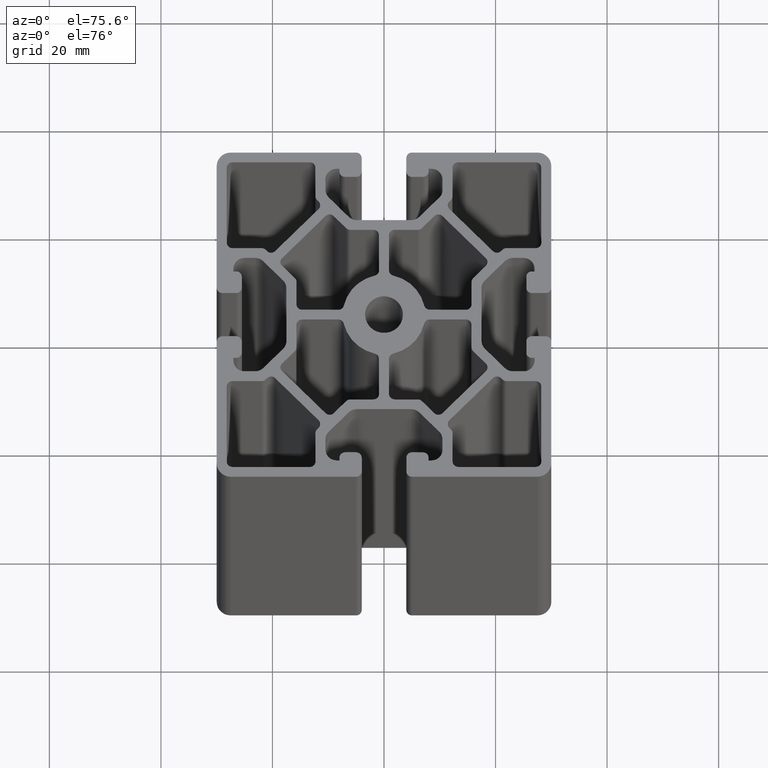
[diagram: clean part render]
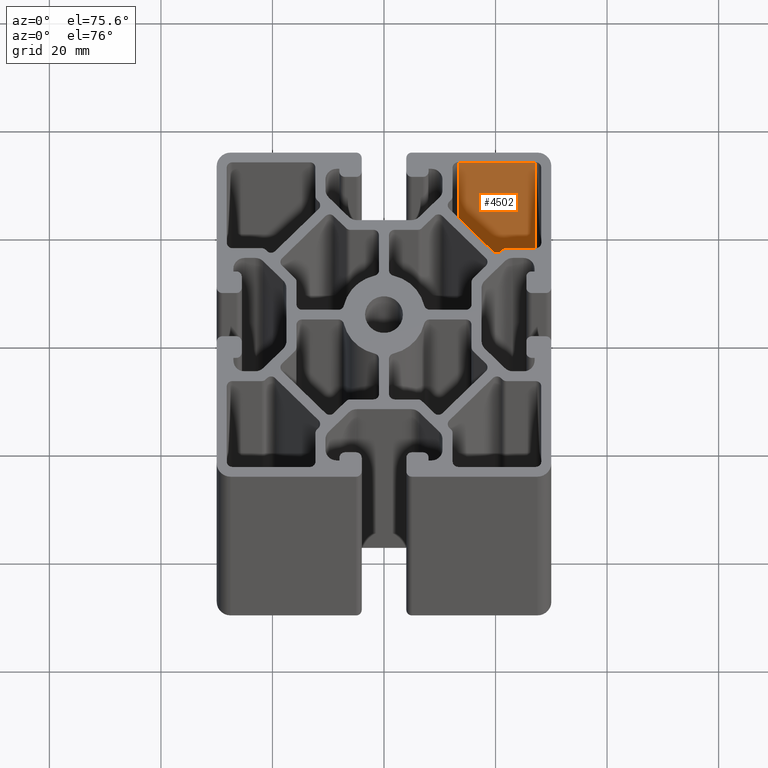
[diagram: same view with one face highlighted and labeled with its STEP entity id]
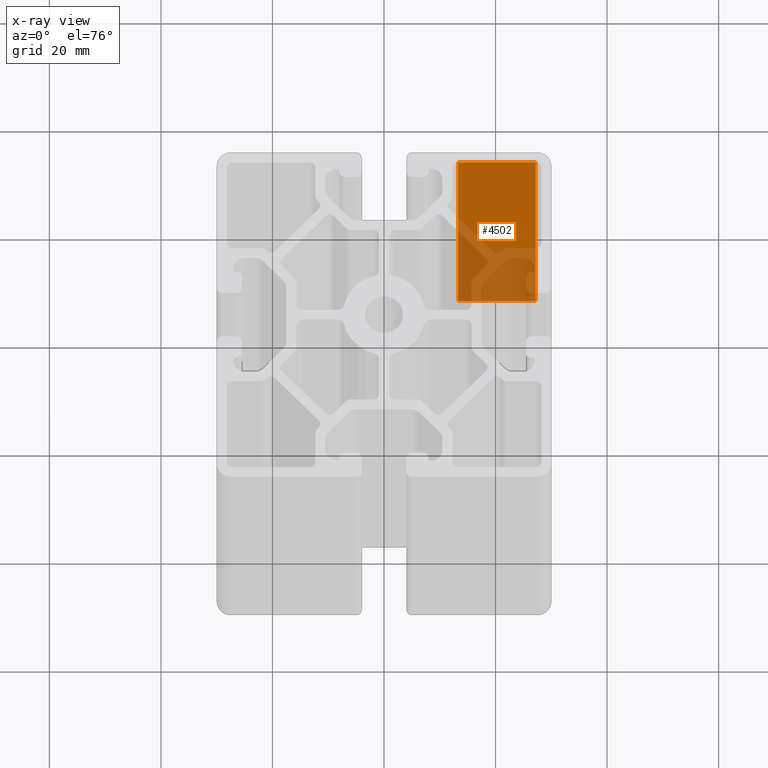
[diagram: x-ray of the same camera — body ghosted, the highlighted face saturated]
A machine part, auxiliary view. The second image highlights one B-rep face of the part: STEP entity #4502.
The next image is the same camera in x-ray: the body ghosted, the highlighted face saturated — about 42% of this face is hidden behind the body in this view.
In plain terms, the highlighted planar face has unit normal (0, 1, 0).
Its self-contained STEP definition (entity closure, byte-faithful):
#45=PLANE('',#4761);
#174=FACE_OUTER_BOUND('',#409,.T.);
#409=EDGE_LOOP('',(#3055,#3056,#3057,#3058));
#685=LINE('',#6725,#1149);
#686=LINE('',#6728,#1150);
#687=LINE('',#6730,#1151);
#688=LINE('',#6731,#1152);
#1149=VECTOR('',#5320,100.);
#1150=VECTOR('',#5323,13.9);
#1151=VECTOR('',#5324,13.9);
#1152=VECTOR('',#5325,100.);
#1847=VERTEX_POINT('',#6721);
#1848=VERTEX_POINT('',#6723);
#1849=VERTEX_POINT('',#6727);
#1850=VERTEX_POINT('',#6729);
#2335=EDGE_CURVE('',#1848,#1847,#685,.T.);
#2336=EDGE_CURVE('',#1847,#1849,#686,.T.);
#2337=EDGE_CURVE('',#1850,#1848,#687,.T.);
#2338=EDGE_CURVE('',#1850,#1849,#688,.T.);
#3055=ORIENTED_EDGE('',*,*,#2336,.F.);
#3056=ORIENTED_EDGE('',*,*,#2335,.F.);
#3057=ORIENTED_EDGE('',*,*,#2337,.F.);
#3058=ORIENTED_EDGE('',*,*,#2338,.T.);
#4502=ADVANCED_FACE('',(#174),#45,.F.);
#4761=AXIS2_PLACEMENT_3D('',#6726,#5321,#5322);
#5320=DIRECTION('',(0.,0.,1.));
#5321=DIRECTION('center_axis',(3.19488640179901E-16,1.,0.));
#5322=DIRECTION('ref_axis',(-1.,3.5527136788005E-16,0.));
#5323=DIRECTION('',(1.,-3.19488640179901E-16,0.));
#5324=DIRECTION('',(-1.,3.19488640179901E-16,0.));
#5325=DIRECTION('',(0.,0.,1.));
#6721=CARTESIAN_POINT('',(13.3,28.2,100.));
#6723=CARTESIAN_POINT('',(13.3,28.2,0.));
#6725=CARTESIAN_POINT('',(13.3,28.2,0.));
#6726=CARTESIAN_POINT('Origin',(27.2,28.2,0.));
#6727=CARTESIAN_POINT('',(27.2,28.2,100.));
#6728=CARTESIAN_POINT('',(13.6,28.2,100.));
#6729=CARTESIAN_POINT('',(27.2,28.2,0.));
#6730=CARTESIAN_POINT('',(13.6,28.2,0.));
#6731=CARTESIAN_POINT('',(27.2,28.2,0.));